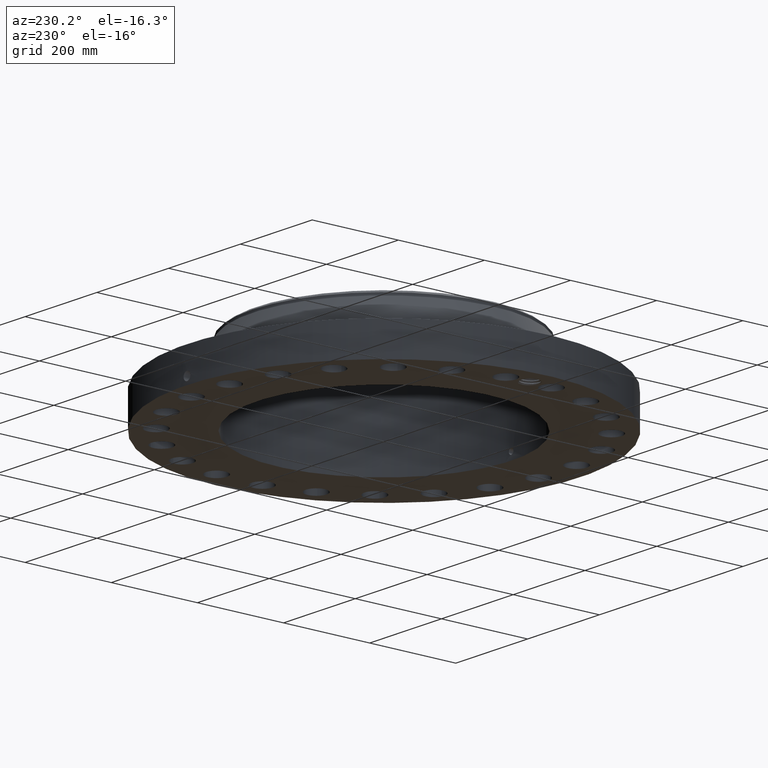
[diagram: clean part render]
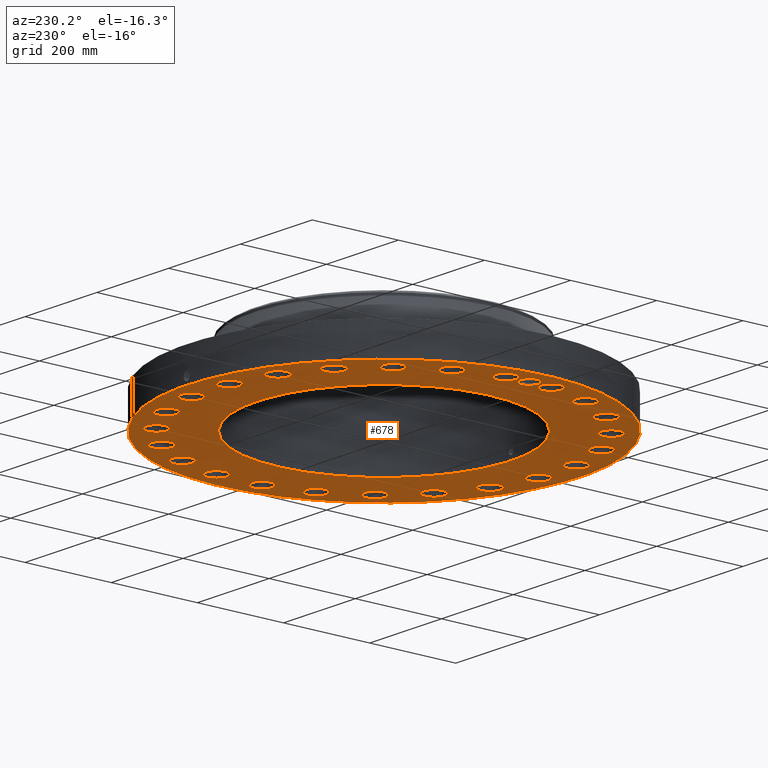
[diagram: same view with one face highlighted and labeled with its STEP entity id]
A machine part, auxiliary view. The second image highlights one B-rep face of the part: STEP entity #678.
In plain terms, the highlighted planar face has unit normal (0, 0, -1).
Its self-contained STEP definition (entity closure, byte-faithful):
#42=AXIS2_PLACEMENT_3D('Circle Axis2P3D',#40,#41,$) ;
#165=AXIS2_PLACEMENT_3D('Plane Axis2P3D',#162,#163,#164) ;
#169=AXIS2_PLACEMENT_3D('Circle Axis2P3D',#167,#168,$) ;
#178=AXIS2_PLACEMENT_3D('Circle Axis2P3D',#176,#177,$) ;
#187=AXIS2_PLACEMENT_3D('Circle Axis2P3D',#185,#186,$) ;
#230=AXIS2_PLACEMENT_3D('Circle Axis2P3D',#228,#229,$) ;
#239=AXIS2_PLACEMENT_3D('Circle Axis2P3D',#237,#238,$) ;
#248=AXIS2_PLACEMENT_3D('Circle Axis2P3D',#246,#247,$) ;
#257=AXIS2_PLACEMENT_3D('Circle Axis2P3D',#255,#256,$) ;
#266=AXIS2_PLACEMENT_3D('Circle Axis2P3D',#264,#265,$) ;
#275=AXIS2_PLACEMENT_3D('Circle Axis2P3D',#273,#274,$) ;
#284=AXIS2_PLACEMENT_3D('Circle Axis2P3D',#282,#283,$) ;
#293=AXIS2_PLACEMENT_3D('Circle Axis2P3D',#291,#292,$) ;
#302=AXIS2_PLACEMENT_3D('Circle Axis2P3D',#300,#301,$) ;
#311=AXIS2_PLACEMENT_3D('Circle Axis2P3D',#309,#310,$) ;
#320=AXIS2_PLACEMENT_3D('Circle Axis2P3D',#318,#319,$) ;
#329=AXIS2_PLACEMENT_3D('Circle Axis2P3D',#327,#328,$) ;
#338=AXIS2_PLACEMENT_3D('Circle Axis2P3D',#336,#337,$) ;
#347=AXIS2_PLACEMENT_3D('Circle Axis2P3D',#345,#346,$) ;
#356=AXIS2_PLACEMENT_3D('Circle Axis2P3D',#354,#355,$) ;
#365=AXIS2_PLACEMENT_3D('Circle Axis2P3D',#363,#364,$) ;
#374=AXIS2_PLACEMENT_3D('Circle Axis2P3D',#372,#373,$) ;
#383=AXIS2_PLACEMENT_3D('Circle Axis2P3D',#381,#382,$) ;
#392=AXIS2_PLACEMENT_3D('Circle Axis2P3D',#390,#391,$) ;
#401=AXIS2_PLACEMENT_3D('Circle Axis2P3D',#399,#400,$) ;
#410=AXIS2_PLACEMENT_3D('Circle Axis2P3D',#408,#409,$) ;
#419=AXIS2_PLACEMENT_3D('Circle Axis2P3D',#417,#418,$) ;
#428=AXIS2_PLACEMENT_3D('Circle Axis2P3D',#426,#427,$) ;
#437=AXIS2_PLACEMENT_3D('Circle Axis2P3D',#435,#436,$) ;
#446=AXIS2_PLACEMENT_3D('Circle Axis2P3D',#444,#445,$) ;
#455=AXIS2_PLACEMENT_3D('Circle Axis2P3D',#453,#454,$) ;
#464=AXIS2_PLACEMENT_3D('Circle Axis2P3D',#462,#463,$) ;
#473=AXIS2_PLACEMENT_3D('Circle Axis2P3D',#471,#472,$) ;
#482=AXIS2_PLACEMENT_3D('Circle Axis2P3D',#480,#481,$) ;
#491=AXIS2_PLACEMENT_3D('Circle Axis2P3D',#489,#490,$) ;
#500=AXIS2_PLACEMENT_3D('Circle Axis2P3D',#498,#499,$) ;
#509=AXIS2_PLACEMENT_3D('Circle Axis2P3D',#507,#508,$) ;
#518=AXIS2_PLACEMENT_3D('Circle Axis2P3D',#516,#517,$) ;
#527=AXIS2_PLACEMENT_3D('Circle Axis2P3D',#525,#526,$) ;
#536=AXIS2_PLACEMENT_3D('Circle Axis2P3D',#534,#535,$) ;
#545=AXIS2_PLACEMENT_3D('Circle Axis2P3D',#543,#544,$) ;
#554=AXIS2_PLACEMENT_3D('Circle Axis2P3D',#552,#553,$) ;
#563=AXIS2_PLACEMENT_3D('Circle Axis2P3D',#561,#562,$) ;
#572=AXIS2_PLACEMENT_3D('Circle Axis2P3D',#570,#571,$) ;
#581=AXIS2_PLACEMENT_3D('Circle Axis2P3D',#579,#580,$) ;
#590=AXIS2_PLACEMENT_3D('Circle Axis2P3D',#588,#589,$) ;
#599=AXIS2_PLACEMENT_3D('Circle Axis2P3D',#597,#598,$) ;
#608=AXIS2_PLACEMENT_3D('Circle Axis2P3D',#606,#607,$) ;
#617=AXIS2_PLACEMENT_3D('Circle Axis2P3D',#615,#616,$) ;
#626=AXIS2_PLACEMENT_3D('Circle Axis2P3D',#624,#625,$) ;
#635=AXIS2_PLACEMENT_3D('Circle Axis2P3D',#633,#634,$) ;
#644=AXIS2_PLACEMENT_3D('Circle Axis2P3D',#642,#643,$) ;
#653=AXIS2_PLACEMENT_3D('Circle Axis2P3D',#651,#652,$) ;
#662=AXIS2_PLACEMENT_3D('Circle Axis2P3D',#660,#661,$) ;
#671=AXIS2_PLACEMENT_3D('Circle Axis2P3D',#669,#670,$) ;
#40=CARTESIAN_POINT('Axis2P3D Location',(0.,0.,0.250000000001)) ;
#44=CARTESIAN_POINT('Vertex',(-8.62965969491,-15.7964861141,0.250000000001)) ;
#46=CARTESIAN_POINT('Vertex',(8.62965969491,15.7964861141,0.250000000001)) ;
#162=CARTESIAN_POINT('Axis2P3D Location',(0.,11.625,0.250000000001)) ;
#167=CARTESIAN_POINT('Axis2P3D Location',(0.,0.,0.250000000001)) ;
#176=CARTESIAN_POINT('Axis2P3D Location',(-16.0000000001,6.71378962923E-015,0.250000000001)) ;
#180=CARTESIAN_POINT('Vertex',(-16.7382663303,0.403316734352,0.250000000001)) ;
#182=CARTESIAN_POINT('Vertex',(-15.6325422507,0.756753833792,0.250000000001)) ;
#185=CARTESIAN_POINT('Axis2P3D Location',(-16.0000000001,6.71378962923E-015,0.250000000001)) ;
#189=CARTESIAN_POINT('Vertex',(-15.6326787278,-0.756820087911,0.250000000001)) ;
#193=CARTESIAN_POINT('Control Point',(-15.1250000001,-8.95171950564E-015,0.250000000001)) ;
#194=CARTESIAN_POINT('Control Point',(-15.127509006,-0.0727664683895,0.250000000001)) ;
#195=CARTESIAN_POINT('Control Point',(-15.1375869371,-0.145148930561,0.250000000001)) ;
#196=CARTESIAN_POINT('Control Point',(-15.1551734452,-0.216067098213,0.250000000001)) ;
#197=CARTESIAN_POINT('Control Point',(-15.2048197517,-0.352948057721,0.250000000001)) ;
#198=CARTESIAN_POINT('Control Point',(-15.2814457696,-0.476031586231,0.250000000001)) ;
#199=CARTESIAN_POINT('Control Point',(-15.3260439894,-0.533212731274,0.250000000001)) ;
#200=CARTESIAN_POINT('Control Point',(-15.4096483127,-0.619785582114,0.250000000001)) ;
#201=CARTESIAN_POINT('Control Point',(-15.5064525949,-0.690022802241,0.250000000001)) ;
#202=CARTESIAN_POINT('Control Point',(-15.5470282882,-0.715300504663,0.250000000001)) ;
#203=CARTESIAN_POINT('Control Point',(-15.5892000643,-0.737607625217,0.250000000001)) ;
#204=CARTESIAN_POINT('Control Point',(-15.6326787278,-0.756820087911,0.250000000001)) ;
#205=CARTESIAN_POINT('Vertex',(-15.1250000001,-8.95171950564E-015,0.250000000001)) ;
#209=CARTESIAN_POINT('Control Point',(-15.1250000001,-8.95171950564E-015,0.250000000001)) ;
#210=CARTESIAN_POINT('Control Point',(-15.1275083672,0.0727479431667,0.250000000001)) ;
#211=CARTESIAN_POINT('Control Point',(-15.137581804,0.14511210459,0.250000000001)) ;
#212=CARTESIAN_POINT('Control Point',(-15.1551690706,0.216033095136,0.250000000001)) ;
#213=CARTESIAN_POINT('Control Point',(-15.2048115281,0.352899239772,0.250000000001)) ;
#214=CARTESIAN_POINT('Control Point',(-15.2814751952,0.476050633228,0.250000000001)) ;
#215=CARTESIAN_POINT('Control Point',(-15.3260878141,0.533259699174,0.250000000001)) ;
#216=CARTESIAN_POINT('Control Point',(-15.409670535,0.619806600301,0.250000000001)) ;
#217=CARTESIAN_POINT('Control Point',(-15.5064841522,0.69003899927,0.250000000001)) ;
#218=CARTESIAN_POINT('Control Point',(-15.5470056759,0.715281960636,0.250000000001)) ;
#219=CARTESIAN_POINT('Control Point',(-15.5891223929,0.737561593375,0.250000000001)) ;
#220=CARTESIAN_POINT('Control Point',(-15.6325422507,0.756753833792,0.250000000001)) ;
#228=CARTESIAN_POINT('Axis2P3D Location',(15.863117782,-2.08841907553,0.250000000001)) ;
#232=CARTESIAN_POINT('Vertex',(16.692433303,-2.54147620951,0.250000000001)) ;
#234=CARTESIAN_POINT('Vertex',(15.0338022611,-1.63536194155,0.250000000001)) ;
#237=CARTESIAN_POINT('Axis2P3D Location',(15.863117782,-2.08841907553,0.250000000001)) ;
#246=CARTESIAN_POINT('Axis2P3D Location',(0.,0.,0.250000000001)) ;
#250=CARTESIAN_POINT('Vertex',(5.5733218863,10.201897282,0.250000000001)) ;
#252=CARTESIAN_POINT('Vertex',(-5.5733218863,-10.201897282,0.250000000001)) ;
#255=CARTESIAN_POINT('Axis2P3D Location',(0.,0.,0.250000000001)) ;
#264=CARTESIAN_POINT('Axis2P3D Location',(14.7820725202,-6.12293491787,0.250000000001)) ;
#268=CARTESIAN_POINT('Vertex',(14.0982750552,-5.47067268014,0.250000000001)) ;
#270=CARTESIAN_POINT('Vertex',(15.4658699853,-6.7751971556,0.250000000001)) ;
#273=CARTESIAN_POINT('Axis2P3D Location',(14.7820725202,-6.12293491787,0.250000000001)) ;
#282=CARTESIAN_POINT('Axis2P3D Location',(12.6936534447,-9.74018286418,0.250000000001)) ;
#286=CARTESIAN_POINT('Vertex',(12.2019737028,-8.93316611629,0.250000000001)) ;
#288=CARTESIAN_POINT('Vertex',(13.1853331866,-10.5471996121,0.250000000001)) ;
#291=CARTESIAN_POINT('Axis2P3D Location',(12.6936534447,-9.74018286418,0.250000000001)) ;
#300=CARTESIAN_POINT('Axis2P3D Location',(9.74018286418,-12.6936534447,0.250000000001)) ;
#304=CARTESIAN_POINT('Vertex',(9.47412800725,-11.7868790444,0.250000000001)) ;
#306=CARTESIAN_POINT('Vertex',(10.0062377211,-13.600427845,0.250000000001)) ;
#309=CARTESIAN_POINT('Axis2P3D Location',(9.74018286418,-12.6936534447,0.250000000001)) ;
#318=CARTESIAN_POINT('Axis2P3D Location',(6.12293491787,-14.7820725202,0.250000000001)) ;
#322=CARTESIAN_POINT('Vertex',(6.10063614477,-13.8373356443,0.250000000001)) ;
#324=CARTESIAN_POINT('Vertex',(6.14523369097,-15.7268093962,0.250000000001)) ;
#327=CARTESIAN_POINT('Axis2P3D Location',(6.12293491787,-14.7820725202,0.250000000001)) ;
#336=CARTESIAN_POINT('Axis2P3D Location',(2.08841907553,-15.863117782,0.250000000001)) ;
#340=CARTESIAN_POINT('Vertex',(2.3113960108,-14.9448006874,0.250000000001)) ;
#342=CARTESIAN_POINT('Vertex',(1.86544214026,-16.7814348767,0.250000000001)) ;
#345=CARTESIAN_POINT('Axis2P3D Location',(2.08841907553,-15.863117782,0.250000000001)) ;
#354=CARTESIAN_POINT('Axis2P3D Location',(-2.08841907553,-15.863117782,0.250000000001)) ;
#358=CARTESIAN_POINT('Vertex',(-1.63536194155,-15.0338022611,0.250000000001)) ;
#360=CARTESIAN_POINT('Vertex',(-2.54147620951,-16.692433303,0.250000000001)) ;
#363=CARTESIAN_POINT('Axis2P3D Location',(-2.08841907553,-15.863117782,0.250000000001)) ;
#372=CARTESIAN_POINT('Axis2P3D Location',(-6.12293491787,-14.7820725202,0.250000000001)) ;
#376=CARTESIAN_POINT('Vertex',(-5.47067268014,-14.0982750552,0.250000000001)) ;
#378=CARTESIAN_POINT('Vertex',(-6.7751971556,-15.4658699853,0.250000000001)) ;
#381=CARTESIAN_POINT('Axis2P3D Location',(-6.12293491787,-14.7820725202,0.250000000001)) ;
#390=CARTESIAN_POINT('Axis2P3D Location',(-9.74018286418,-12.6936534447,0.250000000001)) ;
#394=CARTESIAN_POINT('Vertex',(-8.93316611629,-12.2019737028,0.250000000001)) ;
#396=CARTESIAN_POINT('Vertex',(-10.5471996121,-13.1853331866,0.250000000001)) ;
#399=CARTESIAN_POINT('Axis2P3D Location',(-9.74018286418,-12.6936534447,0.250000000001)) ;
#408=CARTESIAN_POINT('Axis2P3D Location',(-12.6936534447,-9.74018286418,0.250000000001)) ;
#412=CARTESIAN_POINT('Vertex',(-11.7868790444,-9.47412800725,0.250000000001)) ;
#414=CARTESIAN_POINT('Vertex',(-13.600427845,-10.0062377211,0.250000000001)) ;
#417=CARTESIAN_POINT('Axis2P3D Location',(-12.6936534447,-9.74018286418,0.250000000001)) ;
#426=CARTESIAN_POINT('Axis2P3D Location',(-14.7820725202,-6.12293491787,0.250000000001)) ;
#430=CARTESIAN_POINT('Vertex',(-13.8373356443,-6.10063614477,0.250000000001)) ;
#432=CARTESIAN_POINT('Vertex',(-15.7268093962,-6.14523369097,0.250000000001)) ;
#435=CARTESIAN_POINT('Axis2P3D Location',(-14.7820725202,-6.12293491787,0.250000000001)) ;
#444=CARTESIAN_POINT('Axis2P3D Location',(-15.863117782,-2.08841907553,0.250000000001)) ;
#448=CARTESIAN_POINT('Vertex',(-14.9448006874,-2.3113960108,0.250000000001)) ;
#450=CARTESIAN_POINT('Vertex',(-16.7814348767,-1.86544214026,0.250000000001)) ;
#453=CARTESIAN_POINT('Axis2P3D Location',(-15.863117782,-2.08841907553,0.250000000001)) ;
#462=CARTESIAN_POINT('Axis2P3D Location',(-15.863117782,2.08841907553,0.250000000001)) ;
#466=CARTESIAN_POINT('Vertex',(-15.0338022611,1.63536194155,0.250000000001)) ;
#468=CARTESIAN_POINT('Vertex',(-16.692433303,2.54147620951,0.250000000001)) ;
#471=CARTESIAN_POINT('Axis2P3D Location',(-15.863117782,2.08841907553,0.250000000001)) ;
#480=CARTESIAN_POINT('Axis2P3D Location',(-14.7820725202,6.12293491787,0.250000000001)) ;
#484=CARTESIAN_POINT('Vertex',(-14.0982750552,5.47067268014,0.250000000001)) ;
#486=CARTESIAN_POINT('Vertex',(-15.4658699853,6.7751971556,0.250000000001)) ;
#489=CARTESIAN_POINT('Axis2P3D Location',(-14.7820725202,6.12293491787,0.250000000001)) ;
#498=CARTESIAN_POINT('Axis2P3D Location',(-12.6936534447,9.74018286418,0.250000000001)) ;
#502=CARTESIAN_POINT('Vertex',(-12.2019737028,8.93316611629,0.250000000001)) ;
#504=CARTESIAN_POINT('Vertex',(-13.1853331866,10.5471996121,0.250000000001)) ;
#507=CARTESIAN_POINT('Axis2P3D Location',(-12.6936534447,9.74018286418,0.250000000001)) ;
#516=CARTESIAN_POINT('Axis2P3D Location',(-9.74018286418,12.6936534447,0.250000000001)) ;
#520=CARTESIAN_POINT('Vertex',(-9.47412800725,11.7868790444,0.250000000001)) ;
#522=CARTESIAN_POINT('Vertex',(-10.0062377211,13.600427845,0.250000000001)) ;
#525=CARTESIAN_POINT('Axis2P3D Location',(-9.74018286418,12.6936534447,0.250000000001)) ;
#534=CARTESIAN_POINT('Axis2P3D Location',(-6.12293491787,14.7820725202,0.250000000001)) ;
#538=CARTESIAN_POINT('Vertex',(-6.10063614477,13.8373356443,0.250000000001)) ;
#540=CARTESIAN_POINT('Vertex',(-6.14523369097,15.7268093962,0.250000000001)) ;
#543=CARTESIAN_POINT('Axis2P3D Location',(-6.12293491787,14.7820725202,0.250000000001)) ;
#552=CARTESIAN_POINT('Axis2P3D Location',(-2.08841907553,15.863117782,0.250000000001)) ;
#556=CARTESIAN_POINT('Vertex',(-2.3113960108,14.9448006874,0.250000000001)) ;
#558=CARTESIAN_POINT('Vertex',(-1.86544214026,16.7814348767,0.250000000001)) ;
#561=CARTESIAN_POINT('Axis2P3D Location',(-2.08841907553,15.863117782,0.250000000001)) ;
#570=CARTESIAN_POINT('Axis2P3D Location',(2.08841907553,15.863117782,0.250000000001)) ;
#574=CARTESIAN_POINT('Vertex',(1.63536194155,15.0338022611,0.250000000001)) ;
#576=CARTESIAN_POINT('Vertex',(2.54147620951,16.692433303,0.250000000001)) ;
#579=CARTESIAN_POINT('Axis2P3D Location',(2.08841907553,15.863117782,0.250000000001)) ;
#588=CARTESIAN_POINT('Axis2P3D Location',(6.12293491787,14.7820725202,0.250000000001)) ;
#592=CARTESIAN_POINT('Vertex',(5.47067268014,14.0982750552,0.250000000001)) ;
#594=CARTESIAN_POINT('Vertex',(6.7751971556,15.4658699853,0.250000000001)) ;
#597=CARTESIAN_POINT('Axis2P3D Location',(6.12293491787,14.7820725202,0.250000000001)) ;
#606=CARTESIAN_POINT('Axis2P3D Location',(9.74018286418,12.6936534447,0.250000000001)) ;
#610=CARTESIAN_POINT('Vertex',(8.93316611629,12.2019737028,0.250000000001)) ;
#612=CARTESIAN_POINT('Vertex',(10.5471996121,13.1853331866,0.250000000001)) ;
#615=CARTESIAN_POINT('Axis2P3D Location',(9.74018286418,12.6936534447,0.250000000001)) ;
#624=CARTESIAN_POINT('Axis2P3D Location',(12.6936534447,9.74018286418,0.250000000001)) ;
#628=CARTESIAN_POINT('Vertex',(11.7868790444,9.47412800725,0.250000000001)) ;
#630=CARTESIAN_POINT('Vertex',(13.600427845,10.0062377211,0.250000000001)) ;
#633=CARTESIAN_POINT('Axis2P3D Location',(12.6936534447,9.74018286418,0.250000000001)) ;
#642=CARTESIAN_POINT('Axis2P3D Location',(14.7820725202,6.12293491787,0.250000000001)) ;
#646=CARTESIAN_POINT('Vertex',(13.8373356443,6.10063614477,0.250000000001)) ;
#648=CARTESIAN_POINT('Vertex',(15.7268093962,6.14523369097,0.250000000001)) ;
#651=CARTESIAN_POINT('Axis2P3D Location',(14.7820725202,6.12293491787,0.250000000001)) ;
#660=CARTESIAN_POINT('Axis2P3D Location',(15.863117782,2.08841907553,0.250000000001)) ;
#664=CARTESIAN_POINT('Vertex',(14.9448006874,2.3113960108,0.250000000001)) ;
#666=CARTESIAN_POINT('Vertex',(16.7814348767,1.86544214026,0.250000000001)) ;
#669=CARTESIAN_POINT('Axis2P3D Location',(15.863117782,2.08841907553,0.250000000001)) ;
#41=DIRECTION('Axis2P3D Direction',(0.,0.,-0.0393700787402)) ;
#163=DIRECTION('Axis2P3D Direction',(0.,0.,-0.0393700787402)) ;
#164=DIRECTION('Axis2P3D XDirection',(0.0393700787402,0.,0.)) ;
#168=DIRECTION('Axis2P3D Direction',(0.,0.,-0.0393700787402)) ;
#177=DIRECTION('Axis2P3D Direction',(0.,0.,-0.0393700787402)) ;
#186=DIRECTION('Axis2P3D Direction',(0.,0.,-0.0393700787402)) ;
#229=DIRECTION('Axis2P3D Direction',(0.,0.,-0.0393700787402)) ;
#238=DIRECTION('Axis2P3D Direction',(0.,0.,-0.0393700787402)) ;
#247=DIRECTION('Axis2P3D Direction',(0.,0.,-0.0393700787402)) ;
#256=DIRECTION('Axis2P3D Direction',(0.,0.,-0.0393700787402)) ;
#265=DIRECTION('Axis2P3D Direction',(0.,0.,-0.0393700787402)) ;
#274=DIRECTION('Axis2P3D Direction',(0.,0.,-0.0393700787402)) ;
#283=DIRECTION('Axis2P3D Direction',(0.,0.,-0.0393700787402)) ;
#292=DIRECTION('Axis2P3D Direction',(0.,0.,-0.0393700787402)) ;
#301=DIRECTION('Axis2P3D Direction',(0.,0.,-0.0393700787402)) ;
#310=DIRECTION('Axis2P3D Direction',(0.,0.,-0.0393700787402)) ;
#319=DIRECTION('Axis2P3D Direction',(0.,0.,-0.0393700787402)) ;
#328=DIRECTION('Axis2P3D Direction',(0.,0.,-0.0393700787402)) ;
#337=DIRECTION('Axis2P3D Direction',(0.,0.,-0.0393700787402)) ;
#346=DIRECTION('Axis2P3D Direction',(0.,0.,-0.0393700787402)) ;
#355=DIRECTION('Axis2P3D Direction',(0.,0.,-0.0393700787402)) ;
#364=DIRECTION('Axis2P3D Direction',(0.,0.,-0.0393700787402)) ;
#373=DIRECTION('Axis2P3D Direction',(0.,0.,-0.0393700787402)) ;
#382=DIRECTION('Axis2P3D Direction',(0.,0.,-0.0393700787402)) ;
#391=DIRECTION('Axis2P3D Direction',(0.,0.,-0.0393700787402)) ;
#400=DIRECTION('Axis2P3D Direction',(0.,0.,-0.0393700787402)) ;
#409=DIRECTION('Axis2P3D Direction',(0.,0.,-0.0393700787402)) ;
#418=DIRECTION('Axis2P3D Direction',(0.,0.,-0.0393700787402)) ;
#427=DIRECTION('Axis2P3D Direction',(0.,0.,-0.0393700787402)) ;
#436=DIRECTION('Axis2P3D Direction',(0.,0.,-0.0393700787402)) ;
#445=DIRECTION('Axis2P3D Direction',(0.,0.,-0.0393700787402)) ;
#454=DIRECTION('Axis2P3D Direction',(0.,0.,-0.0393700787402)) ;
#463=DIRECTION('Axis2P3D Direction',(0.,0.,-0.0393700787402)) ;
#472=DIRECTION('Axis2P3D Direction',(0.,0.,-0.0393700787402)) ;
#481=DIRECTION('Axis2P3D Direction',(0.,0.,-0.0393700787402)) ;
#490=DIRECTION('Axis2P3D Direction',(0.,0.,-0.0393700787402)) ;
#499=DIRECTION('Axis2P3D Direction',(0.,0.,-0.0393700787402)) ;
#508=DIRECTION('Axis2P3D Direction',(0.,0.,-0.0393700787402)) ;
#517=DIRECTION('Axis2P3D Direction',(0.,0.,-0.0393700787402)) ;
#526=DIRECTION('Axis2P3D Direction',(0.,0.,-0.0393700787402)) ;
#535=DIRECTION('Axis2P3D Direction',(0.,0.,-0.0393700787402)) ;
#544=DIRECTION('Axis2P3D Direction',(0.,0.,-0.0393700787402)) ;
#553=DIRECTION('Axis2P3D Direction',(0.,0.,-0.0393700787402)) ;
#562=DIRECTION('Axis2P3D Direction',(0.,0.,-0.0393700787402)) ;
#571=DIRECTION('Axis2P3D Direction',(0.,0.,-0.0393700787402)) ;
#580=DIRECTION('Axis2P3D Direction',(0.,0.,-0.0393700787402)) ;
#589=DIRECTION('Axis2P3D Direction',(0.,0.,-0.0393700787402)) ;
#598=DIRECTION('Axis2P3D Direction',(0.,0.,-0.0393700787402)) ;
#607=DIRECTION('Axis2P3D Direction',(0.,0.,-0.0393700787402)) ;
#616=DIRECTION('Axis2P3D Direction',(0.,0.,-0.0393700787402)) ;
#625=DIRECTION('Axis2P3D Direction',(0.,0.,-0.0393700787402)) ;
#634=DIRECTION('Axis2P3D Direction',(0.,0.,-0.0393700787402)) ;
#643=DIRECTION('Axis2P3D Direction',(0.,0.,-0.0393700787402)) ;
#652=DIRECTION('Axis2P3D Direction',(0.,0.,-0.0393700787402)) ;
#661=DIRECTION('Axis2P3D Direction',(0.,0.,-0.0393700787402)) ;
#670=DIRECTION('Axis2P3D Direction',(0.,0.,-0.0393700787402)) ;
#173=ORIENTED_EDGE('',*,*,#48,.T.) ;
#174=ORIENTED_EDGE('',*,*,#171,.T.) ;
#223=ORIENTED_EDGE('',*,*,#184,.F.) ;
#224=ORIENTED_EDGE('',*,*,#191,.F.) ;
#225=ORIENTED_EDGE('',*,*,#207,.F.) ;
#226=ORIENTED_EDGE('',*,*,#221,.T.) ;
#243=ORIENTED_EDGE('',*,*,#236,.F.) ;
#244=ORIENTED_EDGE('',*,*,#241,.F.) ;
#261=ORIENTED_EDGE('',*,*,#254,.F.) ;
#262=ORIENTED_EDGE('',*,*,#259,.F.) ;
#279=ORIENTED_EDGE('',*,*,#272,.F.) ;
#280=ORIENTED_EDGE('',*,*,#277,.F.) ;
#297=ORIENTED_EDGE('',*,*,#290,.F.) ;
#298=ORIENTED_EDGE('',*,*,#295,.F.) ;
#315=ORIENTED_EDGE('',*,*,#308,.F.) ;
#316=ORIENTED_EDGE('',*,*,#313,.F.) ;
#333=ORIENTED_EDGE('',*,*,#326,.F.) ;
#334=ORIENTED_EDGE('',*,*,#331,.F.) ;
#351=ORIENTED_EDGE('',*,*,#344,.F.) ;
#352=ORIENTED_EDGE('',*,*,#349,.F.) ;
#369=ORIENTED_EDGE('',*,*,#362,.F.) ;
#370=ORIENTED_EDGE('',*,*,#367,.F.) ;
#387=ORIENTED_EDGE('',*,*,#380,.F.) ;
#388=ORIENTED_EDGE('',*,*,#385,.F.) ;
#405=ORIENTED_EDGE('',*,*,#398,.F.) ;
#406=ORIENTED_EDGE('',*,*,#403,.F.) ;
#423=ORIENTED_EDGE('',*,*,#416,.F.) ;
#424=ORIENTED_EDGE('',*,*,#421,.F.) ;
#441=ORIENTED_EDGE('',*,*,#434,.F.) ;
#442=ORIENTED_EDGE('',*,*,#439,.F.) ;
#459=ORIENTED_EDGE('',*,*,#452,.F.) ;
#460=ORIENTED_EDGE('',*,*,#457,.F.) ;
#477=ORIENTED_EDGE('',*,*,#470,.F.) ;
#478=ORIENTED_EDGE('',*,*,#475,.F.) ;
#495=ORIENTED_EDGE('',*,*,#488,.F.) ;
#496=ORIENTED_EDGE('',*,*,#493,.F.) ;
#513=ORIENTED_EDGE('',*,*,#506,.F.) ;
#514=ORIENTED_EDGE('',*,*,#511,.F.) ;
#531=ORIENTED_EDGE('',*,*,#524,.F.) ;
#532=ORIENTED_EDGE('',*,*,#529,.F.) ;
#549=ORIENTED_EDGE('',*,*,#542,.F.) ;
#550=ORIENTED_EDGE('',*,*,#547,.F.) ;
#567=ORIENTED_EDGE('',*,*,#560,.F.) ;
#568=ORIENTED_EDGE('',*,*,#565,.F.) ;
#585=ORIENTED_EDGE('',*,*,#578,.F.) ;
#586=ORIENTED_EDGE('',*,*,#583,.F.) ;
#603=ORIENTED_EDGE('',*,*,#596,.F.) ;
#604=ORIENTED_EDGE('',*,*,#601,.F.) ;
#621=ORIENTED_EDGE('',*,*,#614,.F.) ;
#622=ORIENTED_EDGE('',*,*,#619,.F.) ;
#639=ORIENTED_EDGE('',*,*,#632,.F.) ;
#640=ORIENTED_EDGE('',*,*,#637,.F.) ;
#657=ORIENTED_EDGE('',*,*,#650,.F.) ;
#658=ORIENTED_EDGE('',*,*,#655,.F.) ;
#675=ORIENTED_EDGE('',*,*,#668,.F.) ;
#676=ORIENTED_EDGE('',*,*,#673,.F.) ;
#227=FACE_BOUND('',#222,.T.) ;
#245=FACE_BOUND('',#242,.T.) ;
#263=FACE_BOUND('',#260,.T.) ;
#281=FACE_BOUND('',#278,.T.) ;
#299=FACE_BOUND('',#296,.T.) ;
#317=FACE_BOUND('',#314,.T.) ;
#335=FACE_BOUND('',#332,.T.) ;
#353=FACE_BOUND('',#350,.T.) ;
#371=FACE_BOUND('',#368,.T.) ;
#389=FACE_BOUND('',#386,.T.) ;
#407=FACE_BOUND('',#404,.T.) ;
#425=FACE_BOUND('',#422,.T.) ;
#443=FACE_BOUND('',#440,.T.) ;
#461=FACE_BOUND('',#458,.T.) ;
#479=FACE_BOUND('',#476,.T.) ;
#497=FACE_BOUND('',#494,.T.) ;
#515=FACE_BOUND('',#512,.T.) ;
#533=FACE_BOUND('',#530,.T.) ;
#551=FACE_BOUND('',#548,.T.) ;
#569=FACE_BOUND('',#566,.T.) ;
#587=FACE_BOUND('',#584,.T.) ;
#605=FACE_BOUND('',#602,.T.) ;
#623=FACE_BOUND('',#620,.T.) ;
#641=FACE_BOUND('',#638,.T.) ;
#659=FACE_BOUND('',#656,.T.) ;
#677=FACE_BOUND('',#674,.T.) ;
#678=ADVANCED_FACE('PartBody',(#175,#227,#245,#263,#281,#299,#317,#335,#353,#371,#389,#407,#425,#443,#461,#479,#497,#515,#533,#551,#569,#587,#605,#623,#641,#659,#677),#166,.T.) ;
#192=B_SPLINE_CURVE_WITH_KNOTS('',5,(#193,#194,#195,#196,#197,#198,#199,#200,#201,#202,#203,#204),.UNSPECIFIED.,.F.,.U.,(6,3,3,6),(0.,12.7384754822,25.4890608227,33.9843244521),.UNSPECIFIED.) ;
#208=B_SPLINE_CURVE_WITH_KNOTS('',5,(#209,#210,#211,#212,#213,#214,#215,#216,#217,#218,#219,#220),.UNSPECIFIED.,.F.,.U.,(6,3,3,6),(0.,12.7352324625,25.4710245263,33.9355591651),.UNSPECIFIED.) ;
#43=CIRCLE('generated circle',#42,18.0000000001) ;
#170=CIRCLE('generated circle',#169,18.0000000001) ;
#179=CIRCLE('generated circle',#178,0.841250000003) ;
#188=CIRCLE('generated circle',#187,0.841250000003) ;
#231=CIRCLE('generated circle',#230,0.945000000004) ;
#240=CIRCLE('generated circle',#239,0.945000000004) ;
#249=CIRCLE('generated circle',#248,11.625) ;
#258=CIRCLE('generated circle',#257,11.625) ;
#267=CIRCLE('generated circle',#266,0.945000000004) ;
#276=CIRCLE('generated circle',#275,0.945000000004) ;
#285=CIRCLE('generated circle',#284,0.945000000004) ;
#294=CIRCLE('generated circle',#293,0.945000000004) ;
#303=CIRCLE('generated circle',#302,0.945000000004) ;
#312=CIRCLE('generated circle',#311,0.945000000004) ;
#321=CIRCLE('generated circle',#320,0.945000000004) ;
#330=CIRCLE('generated circle',#329,0.945000000004) ;
#339=CIRCLE('generated circle',#338,0.945000000004) ;
#348=CIRCLE('generated circle',#347,0.945000000004) ;
#357=CIRCLE('generated circle',#356,0.945000000004) ;
#366=CIRCLE('generated circle',#365,0.945000000004) ;
#375=CIRCLE('generated circle',#374,0.945000000004) ;
#384=CIRCLE('generated circle',#383,0.945000000004) ;
#393=CIRCLE('generated circle',#392,0.945000000004) ;
#402=CIRCLE('generated circle',#401,0.945000000004) ;
#411=CIRCLE('generated circle',#410,0.945000000004) ;
#420=CIRCLE('generated circle',#419,0.945000000004) ;
#429=CIRCLE('generated circle',#428,0.945000000004) ;
#438=CIRCLE('generated circle',#437,0.945000000004) ;
#447=CIRCLE('generated circle',#446,0.945000000004) ;
#456=CIRCLE('generated circle',#455,0.945000000004) ;
#465=CIRCLE('generated circle',#464,0.945000000004) ;
#474=CIRCLE('generated circle',#473,0.945000000004) ;
#483=CIRCLE('generated circle',#482,0.945000000004) ;
#492=CIRCLE('generated circle',#491,0.945000000004) ;
#501=CIRCLE('generated circle',#500,0.945000000004) ;
#510=CIRCLE('generated circle',#509,0.945000000004) ;
#519=CIRCLE('generated circle',#518,0.945000000004) ;
#528=CIRCLE('generated circle',#527,0.945000000004) ;
#537=CIRCLE('generated circle',#536,0.945000000004) ;
#546=CIRCLE('generated circle',#545,0.945000000004) ;
#555=CIRCLE('generated circle',#554,0.945000000004) ;
#564=CIRCLE('generated circle',#563,0.945000000004) ;
#573=CIRCLE('generated circle',#572,0.945000000004) ;
#582=CIRCLE('generated circle',#581,0.945000000004) ;
#591=CIRCLE('generated circle',#590,0.945000000004) ;
#600=CIRCLE('generated circle',#599,0.945000000004) ;
#609=CIRCLE('generated circle',#608,0.945000000004) ;
#618=CIRCLE('generated circle',#617,0.945000000004) ;
#627=CIRCLE('generated circle',#626,0.945000000004) ;
#636=CIRCLE('generated circle',#635,0.945000000004) ;
#645=CIRCLE('generated circle',#644,0.945000000004) ;
#654=CIRCLE('generated circle',#653,0.945000000004) ;
#663=CIRCLE('generated circle',#662,0.945000000004) ;
#672=CIRCLE('generated circle',#671,0.945000000004) ;
#48=EDGE_CURVE('',#45,#47,#43,.T.) ;
#171=EDGE_CURVE('',#47,#45,#170,.T.) ;
#184=EDGE_CURVE('',#181,#183,#179,.T.) ;
#191=EDGE_CURVE('',#190,#181,#188,.T.) ;
#207=EDGE_CURVE('',#206,#190,#192,.T.) ;
#221=EDGE_CURVE('',#206,#183,#208,.T.) ;
#236=EDGE_CURVE('',#233,#235,#231,.T.) ;
#241=EDGE_CURVE('',#235,#233,#240,.T.) ;
#254=EDGE_CURVE('',#251,#253,#249,.T.) ;
#259=EDGE_CURVE('',#253,#251,#258,.T.) ;
#272=EDGE_CURVE('',#269,#271,#267,.T.) ;
#277=EDGE_CURVE('',#271,#269,#276,.T.) ;
#290=EDGE_CURVE('',#287,#289,#285,.T.) ;
#295=EDGE_CURVE('',#289,#287,#294,.T.) ;
#308=EDGE_CURVE('',#305,#307,#303,.T.) ;
#313=EDGE_CURVE('',#307,#305,#312,.T.) ;
#326=EDGE_CURVE('',#323,#325,#321,.T.) ;
#331=EDGE_CURVE('',#325,#323,#330,.T.) ;
#344=EDGE_CURVE('',#341,#343,#339,.T.) ;
#349=EDGE_CURVE('',#343,#341,#348,.T.) ;
#362=EDGE_CURVE('',#359,#361,#357,.T.) ;
#367=EDGE_CURVE('',#361,#359,#366,.T.) ;
#380=EDGE_CURVE('',#377,#379,#375,.T.) ;
#385=EDGE_CURVE('',#379,#377,#384,.T.) ;
#398=EDGE_CURVE('',#395,#397,#393,.T.) ;
#403=EDGE_CURVE('',#397,#395,#402,.T.) ;
#416=EDGE_CURVE('',#413,#415,#411,.T.) ;
#421=EDGE_CURVE('',#415,#413,#420,.T.) ;
#434=EDGE_CURVE('',#431,#433,#429,.T.) ;
#439=EDGE_CURVE('',#433,#431,#438,.T.) ;
#452=EDGE_CURVE('',#449,#451,#447,.T.) ;
#457=EDGE_CURVE('',#451,#449,#456,.T.) ;
#470=EDGE_CURVE('',#467,#469,#465,.T.) ;
#475=EDGE_CURVE('',#469,#467,#474,.T.) ;
#488=EDGE_CURVE('',#485,#487,#483,.T.) ;
#493=EDGE_CURVE('',#487,#485,#492,.T.) ;
#506=EDGE_CURVE('',#503,#505,#501,.T.) ;
#511=EDGE_CURVE('',#505,#503,#510,.T.) ;
#524=EDGE_CURVE('',#521,#523,#519,.T.) ;
#529=EDGE_CURVE('',#523,#521,#528,.T.) ;
#542=EDGE_CURVE('',#539,#541,#537,.T.) ;
#547=EDGE_CURVE('',#541,#539,#546,.T.) ;
#560=EDGE_CURVE('',#557,#559,#555,.T.) ;
#565=EDGE_CURVE('',#559,#557,#564,.T.) ;
#578=EDGE_CURVE('',#575,#577,#573,.T.) ;
#583=EDGE_CURVE('',#577,#575,#582,.T.) ;
#596=EDGE_CURVE('',#593,#595,#591,.T.) ;
#601=EDGE_CURVE('',#595,#593,#600,.T.) ;
#614=EDGE_CURVE('',#611,#613,#609,.T.) ;
#619=EDGE_CURVE('',#613,#611,#618,.T.) ;
#632=EDGE_CURVE('',#629,#631,#627,.T.) ;
#637=EDGE_CURVE('',#631,#629,#636,.T.) ;
#650=EDGE_CURVE('',#647,#649,#645,.T.) ;
#655=EDGE_CURVE('',#649,#647,#654,.T.) ;
#668=EDGE_CURVE('',#665,#667,#663,.T.) ;
#673=EDGE_CURVE('',#667,#665,#672,.T.) ;
#172=EDGE_LOOP('',(#173,#174)) ;
#222=EDGE_LOOP('',(#223,#224,#225,#226)) ;
#242=EDGE_LOOP('',(#243,#244)) ;
#260=EDGE_LOOP('',(#261,#262)) ;
#278=EDGE_LOOP('',(#279,#280)) ;
#296=EDGE_LOOP('',(#297,#298)) ;
#314=EDGE_LOOP('',(#315,#316)) ;
#332=EDGE_LOOP('',(#333,#334)) ;
#350=EDGE_LOOP('',(#351,#352)) ;
#368=EDGE_LOOP('',(#369,#370)) ;
#386=EDGE_LOOP('',(#387,#388)) ;
#404=EDGE_LOOP('',(#405,#406)) ;
#422=EDGE_LOOP('',(#423,#424)) ;
#440=EDGE_LOOP('',(#441,#442)) ;
#458=EDGE_LOOP('',(#459,#460)) ;
#476=EDGE_LOOP('',(#477,#478)) ;
#494=EDGE_LOOP('',(#495,#496)) ;
#512=EDGE_LOOP('',(#513,#514)) ;
#530=EDGE_LOOP('',(#531,#532)) ;
#548=EDGE_LOOP('',(#549,#550)) ;
#566=EDGE_LOOP('',(#567,#568)) ;
#584=EDGE_LOOP('',(#585,#586)) ;
#602=EDGE_LOOP('',(#603,#604)) ;
#620=EDGE_LOOP('',(#621,#622)) ;
#638=EDGE_LOOP('',(#639,#640)) ;
#656=EDGE_LOOP('',(#657,#658)) ;
#674=EDGE_LOOP('',(#675,#676)) ;
#175=FACE_OUTER_BOUND('',#172,.T.) ;
#166=PLANE('',#165) ;
#45=VERTEX_POINT('',#44) ;
#47=VERTEX_POINT('',#46) ;
#181=VERTEX_POINT('',#180) ;
#183=VERTEX_POINT('',#182) ;
#190=VERTEX_POINT('',#189) ;
#206=VERTEX_POINT('',#205) ;
#233=VERTEX_POINT('',#232) ;
#235=VERTEX_POINT('',#234) ;
#251=VERTEX_POINT('',#250) ;
#253=VERTEX_POINT('',#252) ;
#269=VERTEX_POINT('',#268) ;
#271=VERTEX_POINT('',#270) ;
#287=VERTEX_POINT('',#286) ;
#289=VERTEX_POINT('',#288) ;
#305=VERTEX_POINT('',#304) ;
#307=VERTEX_POINT('',#306) ;
#323=VERTEX_POINT('',#322) ;
#325=VERTEX_POINT('',#324) ;
#341=VERTEX_POINT('',#340) ;
#343=VERTEX_POINT('',#342) ;
#359=VERTEX_POINT('',#358) ;
#361=VERTEX_POINT('',#360) ;
#377=VERTEX_POINT('',#376) ;
#379=VERTEX_POINT('',#378) ;
#395=VERTEX_POINT('',#394) ;
#397=VERTEX_POINT('',#396) ;
#413=VERTEX_POINT('',#412) ;
#415=VERTEX_POINT('',#414) ;
#431=VERTEX_POINT('',#430) ;
#433=VERTEX_POINT('',#432) ;
#449=VERTEX_POINT('',#448) ;
#451=VERTEX_POINT('',#450) ;
#467=VERTEX_POINT('',#466) ;
#469=VERTEX_POINT('',#468) ;
#485=VERTEX_POINT('',#484) ;
#487=VERTEX_POINT('',#486) ;
#503=VERTEX_POINT('',#502) ;
#505=VERTEX_POINT('',#504) ;
#521=VERTEX_POINT('',#520) ;
#523=VERTEX_POINT('',#522) ;
#539=VERTEX_POINT('',#538) ;
#541=VERTEX_POINT('',#540) ;
#557=VERTEX_POINT('',#556) ;
#559=VERTEX_POINT('',#558) ;
#575=VERTEX_POINT('',#574) ;
#577=VERTEX_POINT('',#576) ;
#593=VERTEX_POINT('',#592) ;
#595=VERTEX_POINT('',#594) ;
#611=VERTEX_POINT('',#610) ;
#613=VERTEX_POINT('',#612) ;
#629=VERTEX_POINT('',#628) ;
#631=VERTEX_POINT('',#630) ;
#647=VERTEX_POINT('',#646) ;
#649=VERTEX_POINT('',#648) ;
#665=VERTEX_POINT('',#664) ;
#667=VERTEX_POINT('',#666) ;